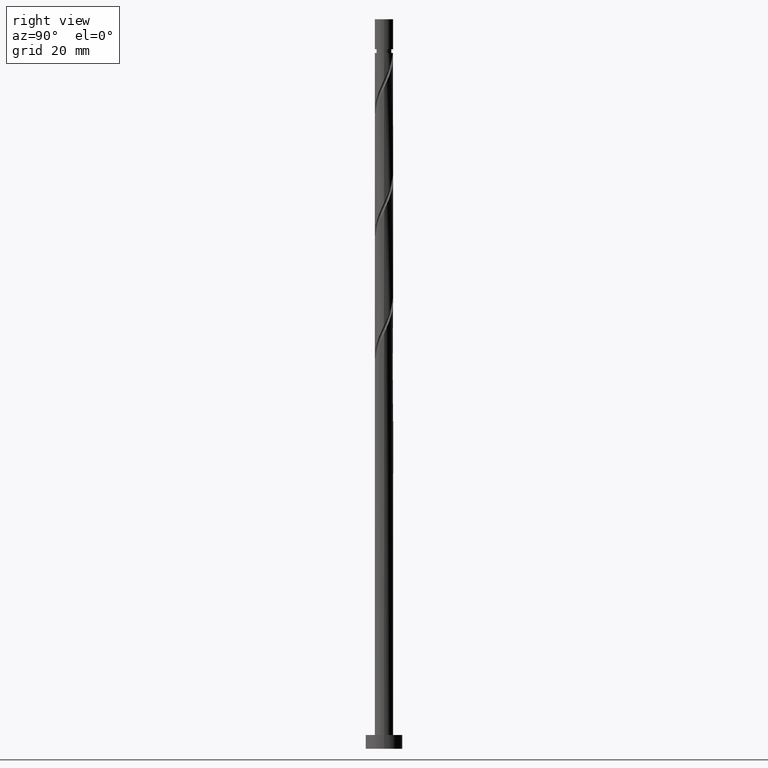
[diagram: clean part render]
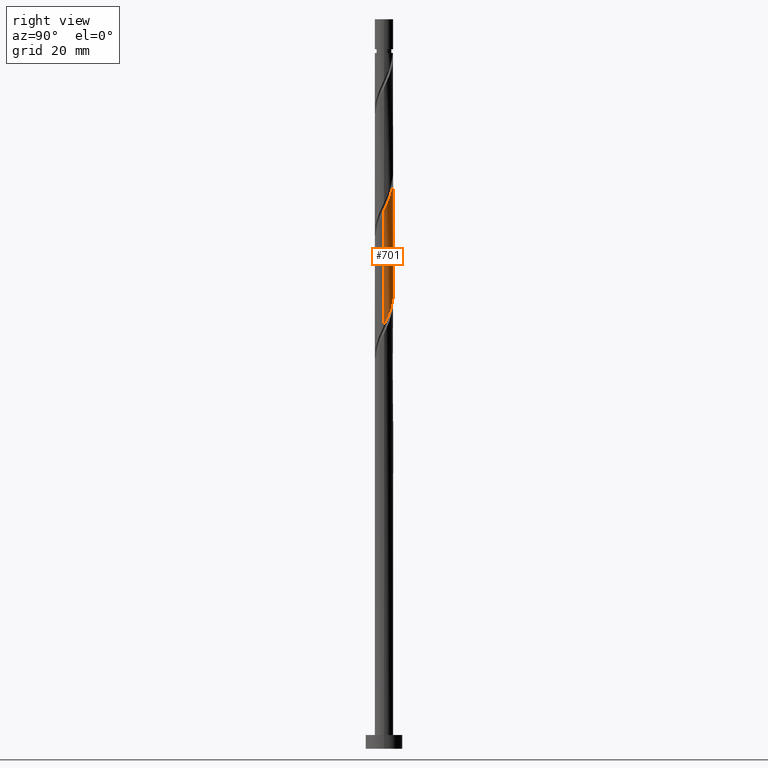
[diagram: same view with one face highlighted and labeled with its STEP entity id]
A machine part, right view. The second image highlights one B-rep face of the part: STEP entity #701.
In plain terms, the highlighted cylindrical surface (edge-blend (fillet) strip) has radius 2 mm, axis along (-0, -0, -1).
Its self-contained STEP definition (entity closure, byte-faithful):
#2 = EDGE_CURVE ( 'NONE', #94, #1554, #1351, .T. ) ;
#20 = CARTESIAN_POINT ( 'NONE',  ( 0.9928482695149688508, 1.759812803970230544, 121.3059297336819782 ) ) ;
#28 = CARTESIAN_POINT ( 'NONE',  ( -1.600603406160407305, 1.233189980288575738, 127.3665357942879979 ) ) ;
#80 = VERTEX_POINT ( 'NONE', #784 ) ;
#94 = VERTEX_POINT ( 'NONE', #1307 ) ;
#98 = CARTESIAN_POINT ( 'NONE',  ( 1.394470680848405753, 1.433684595806965723, 95.24532367307590164 ) ) ;
#140 = CARTESIAN_POINT ( 'NONE',  ( -0.3979949748426479528, 1.960000000000002629, 124.3362327639849951 ) ) ;
#157 = CARTESIAN_POINT ( 'NONE',  ( 2.000000000000003553, 0.05755105304764382423, 116.9422096227356604 ) ) ;
#174 = CARTESIAN_POINT ( 'NONE',  ( -0.6798004310727966404, 1.902776961498554797, 124.9422933700455900 ) ) ;
#215 = CARTESIAN_POINT ( 'NONE',  ( -1.617545623245911557, 1.176242388590886367, 102.5180509458031821 ) ) ;
#224 = CARTESIAN_POINT ( 'NONE',  ( 0.3979949748426485634, 1.959999999999999964, 97.66956609731833794 ) ) ;
#228 = DIRECTION ( 'NONE',  ( -1.000000000000000000, 0.000000000000000000, 0.000000000000000000 ) ) ;
#257 = CARTESIAN_POINT ( 'NONE',  ( 2.000000000000003553, 1.046977449244738821E-15, 116.8201116180174495 ) ) ;
#272 = CARTESIAN_POINT ( 'NONE',  ( 0.1703224295138034972, 1.992734370156877821, 123.1241115518637628 ) ) ;
#289 = CARTESIAN_POINT ( 'NONE',  ( 1.996690616564942955, 0.1150068768444763023, 117.0635054912576862 ) ) ;
#306 = LINE ( 'NONE', #814, #1235 ) ;
#361 = CARTESIAN_POINT ( 'NONE',  ( 2.000000000000000888, 0.2290578547702413481, 92.33831386292386867 ) ) ;
#370 = DIRECTION ( 'NONE',  ( -0.000000000000000000, -0.000000000000000000, -1.000000000000000000 ) ) ;
#380 = CARTESIAN_POINT ( 'NONE',  ( -1.220637884402354434, 1.584311571365223825, 101.3059297336819498 ) ) ;
#386 = CARTESIAN_POINT ( 'NONE',  ( -1.996690616564939846, 0.1150068768444769407, 104.9422933700456184 ) ) ;
#405 = CARTESIAN_POINT ( 'NONE',  ( 2.000000000000003553, 1.046977449244738821E-15, 116.8201116180174495 ) ) ;
#477 = CARTESIAN_POINT ( 'NONE',  ( -0.7248413235775362784, 1.864029252891264088, 100.0938085215607742 ) ) ;
#487 = CARTESIAN_POINT ( 'NONE',  ( 1.600603406160404196, 1.233189980288573295, 94.63926306701530677 ) ) ;
#497 = CARTESIAN_POINT ( 'NONE',  ( 1.883197487972272377, 0.7322950311120128841, 93.42714185489408862 ) ) ;
#552 = VERTEX_POINT ( 'NONE', #257 ) ;
#650 = CARTESIAN_POINT ( 'NONE',  ( -1.883197487972274375, 0.7322950311120159927, 128.5786570064092587 ) ) ;
#655 = CARTESIAN_POINT ( 'NONE',  ( -0.9340691933046025852, 1.768478086411957584, 125.5483539761061706 ) ) ;
#666 = CARTESIAN_POINT ( 'NONE',  ( -0.1161895186124998758, 2.017223038501451349, 123.7301721579243576 ) ) ;
#684 = CARTESIAN_POINT ( 'NONE',  ( 1.786663747202085650, 0.9436744384215545178, 118.8816873094395703 ) ) ;
#701 = ADVANCED_FACE ( 'NONE', ( #861 ), #721, .T. ) ;
#721 = CYLINDRICAL_SURFACE ( 'NONE', #771, 2.000000000000000000 ) ;
#726 = LINE ( 'NONE', #734, #1629 ) ;
#734 = CARTESIAN_POINT ( 'NONE',  ( -2.000000000000000000, 0.000000000000000000, 158.3300000000000125 ) ) ;
#771 = AXIS2_PLACEMENT_3D ( 'NONE', #869, #1387, #228 ) ;
#784 = CARTESIAN_POINT ( 'NONE',  ( -2.000000000000003553, -1.151675194169212802E-15, 130.1534449513507923 ) ) ;
#785 = CARTESIAN_POINT ( 'NONE',  ( -1.394470680848407751, 1.433684595806967943, 126.7604751882274172 ) ) ;
#814 = CARTESIAN_POINT ( 'NONE',  ( 2.000000000000000000, 2.449293598294705921E-16, 158.3300000000000125 ) ) ;
#861 = FACE_OUTER_BOUND ( 'NONE', #1282, .T. ) ;
#865 = CARTESIAN_POINT ( 'NONE',  ( -2.000000000000000000, 1.734991201605581417E-15, 105.1856872432858836 ) ) ;
#869 = CARTESIAN_POINT ( 'NONE',  ( 0.000000000000000000, 0.000000000000000000, 158.3300000000000125 ) ) ;
#890 = CARTESIAN_POINT ( 'NONE',  ( -0.1703224295138027200, 1.992734370156874713, 98.88168730943955609 ) ) ;
#898 = CARTESIAN_POINT ( 'NONE',  ( -1.883409435608316418, 0.6728810428757543427, 103.7301721579244003 ) ) ;
#928 = CARTESIAN_POINT ( 'NONE',  ( 1.448427499289745013, 1.408810338760221104, 120.0938085215607600 ) ) ;
#936 = CARTESIAN_POINT ( 'NONE',  ( 1.220637884402356654, 1.584311571365226046, 120.6998691276213265 ) ) ;
#988 = CARTESIAN_POINT ( 'NONE',  ( -0.4568343776401056489, 1.968245701812300963, 99.48774791550015095 ) ) ;
#1003 = CARTESIAN_POINT ( 'NONE',  ( 1.741900447066337509, 0.9827425057002938669, 94.03320246095468349 ) ) ;
#1011 = CARTESIAN_POINT ( 'NONE',  ( 1.999999999999999556, -2.191174233062221259E-15, 91.85235390995255500 ) ) ;
#1024 = EDGE_CURVE ( 'NONE', #80, #94, #726, .T. ) ;
#1049 = DIRECTION ( 'NONE',  ( -0.000000000000000000, -0.000000000000000000, -1.000000000000000000 ) ) ;
#1067 = CARTESIAN_POINT ( 'NONE',  ( 0.7248413235775373886, 1.864029252891266530, 121.9119903397425730 ) ) ;
#1074 = CARTESIAN_POINT ( 'NONE',  ( 1.980155124014554291, 0.4020876473299550002, 117.6695660973183379 ) ) ;
#1121 = CARTESIAN_POINT ( 'NONE',  ( -1.980155124014550738, 0.4020876473299550002, 104.3362327639850093 ) ) ;
#1133 = EDGE_CURVE ( 'NONE', #552, #80, #1174, .T. ) ;
#1141 = CARTESIAN_POINT ( 'NONE',  ( 1.999999999999999556, -2.191174233062221259E-15, 91.85235390995256921 ) ) ;
#1142 = CARTESIAN_POINT ( 'NONE',  ( -1.786663747202081876, 0.9436744384215537407, 103.1241115518637628 ) ) ;
#1152 = CARTESIAN_POINT ( 'NONE',  ( -1.448427499289741682, 1.408810338760219549, 101.9119903397425730 ) ) ;
#1174 =( BOUNDED_CURVE ( )  B_SPLINE_CURVE ( 2, ( #405, #157, #289, #1074, #1578, #684, #1203, #928, #936, #20, #1067, #1555, #272, #666, #140, #174, #655, #1194, #785, #28, #1456, #650, #1563, #1310, #1571 ),
 .UNSPECIFIED., .F., .T. ) 
 B_SPLINE_CURVE_WITH_KNOTS ( ( 3, 2, 2, 2, 2, 2, 2, 2, 2, 2, 2, 2, 3 ),
 ( 0.4295252162417512731, 0.4318181818181817677, 0.4431818181818182323, 0.4545454545454545858, 0.4659090909090909394, 0.4772727272727272929, 0.4886363636363636465, 0.5000000000000000000, 0.5113636363636363535, 0.5227272727272727071, 0.5340909090909091717, 0.5454545454545454142, 0.5545252162417516617 ),
 .UNSPECIFIED. ) 
 CURVE ( )  GEOMETRIC_REPRESENTATION_ITEM ( )  RATIONAL_B_SPLINE_CURVE ( ( 0.9061101570135692285, 0.9072237824201513368, 0.9090909090909289336, 0.8998376744372310609, 0.9090909090909289336, 0.8998376744372310609, 0.9090909090909289336, 0.8998376744372310609, 0.9090909090909289336, 0.8998376744372310609, 0.9090909090909289336, 0.8998376744372310609, 0.9090909090909289336, 0.8998376744372310609, 0.9090909090909289336, 0.8998376744372310609, 0.9090909090909289336, 0.8998376744372310609, 0.9090909090909289336, 0.8998376744372310609, 0.9090909090909289336, 0.8998376744372310609, 0.9090909090909289336, 0.9017048011080084358, 0.9061101570135694505 ) ) 
 REPRESENTATION_ITEM ( '' )  );
#1194 = CARTESIAN_POINT ( 'NONE',  ( -1.188337955536409307, 1.634179211325361258, 126.1544145821668081 ) ) ;
#1203 = CARTESIAN_POINT ( 'NONE',  ( 1.617545623245914443, 1.176242388590887478, 119.4877479155001083 ) ) ;
#1235 = VECTOR ( 'NONE', #1049, 1000.000000000000000 ) ;
#1254 = CARTESIAN_POINT ( 'NONE',  ( 0.9340691933046018081, 1.768478086411955141, 96.45744488519713400 ) ) ;
#1266 = ORIENTED_EDGE ( 'NONE', *, *, #2, .F. ) ;
#1270 = EDGE_CURVE ( 'NONE', #552, #1554, #306, .T. ) ;
#1282 = EDGE_LOOP ( 'NONE', ( #1390, #1577, #1266, #1503 ) ) ;
#1307 = CARTESIAN_POINT ( 'NONE',  ( -2.000000000000000000, 1.734991201605581417E-15, 105.1856872432858836 ) ) ;
#1310 = CARTESIAN_POINT ( 'NONE',  ( -2.000000000000005329, 0.2290578547702396828, 129.6674849983794218 ) ) ;
#1351 =( BOUNDED_CURVE ( )  B_SPLINE_CURVE ( 2, ( #865, #1531, #386, #1121, #898, #1142, #215, #1152, #380, #1635, #477, #988, #890, #1381, #224, #1656, #1254, #1647, #98, #487, #1003, #497, #1516, #361, #1011 ),
 .UNSPECIFIED., .F., .T. ) 
 B_SPLINE_CURVE_WITH_KNOTS ( ( 3, 2, 2, 2, 2, 2, 2, 2, 2, 2, 2, 2, 3 ),
 ( 0.6795252162417514397, 0.6818181818181817677, 0.6931818181818182323, 0.7045454545454545858, 0.7159090909090909394, 0.7272727272727272929, 0.7386363636363636465, 0.7500000000000000000, 0.7613636363636363535, 0.7727272727272727071, 0.7840909090909090606, 0.7954545454545454142, 0.8045252162417514397 ),
 .UNSPECIFIED. ) 
 CURVE ( )  GEOMETRIC_REPRESENTATION_ITEM ( )  RATIONAL_B_SPLINE_CURVE ( ( 0.9061101570135619010, 0.9072237824201440093, 0.9090909090909213841, 0.8998376744372236224, 0.9090909090909213841, 0.8998376744372236224, 0.9090909090909213841, 0.8998376744372236224, 0.9090909090909213841, 0.8998376744372236224, 0.9090909090909213841, 0.8998376744372236224, 0.9090909090909213841, 0.8998376744372236224, 0.9090909090909213841, 0.8998376744372236224, 0.9090909090909213841, 0.8998376744372236224, 0.9090909090909213841, 0.8998376744372236224, 0.9090909090909213841, 0.8998376744372236224, 0.9090909090909213841, 0.9017048011080009973, 0.9061101570135619010 ) ) 
 REPRESENTATION_ITEM ( '' )  );
#1381 = CARTESIAN_POINT ( 'NONE',  ( 0.1161895186125003337, 2.017223038501447796, 98.27562670337893280 ) ) ;
#1387 = DIRECTION ( 'NONE',  ( -0.000000000000000000, -0.000000000000000000, -1.000000000000000000 ) ) ;
#1390 = ORIENTED_EDGE ( 'NONE', *, *, #1133, .F. ) ;
#1456 = CARTESIAN_POINT ( 'NONE',  ( -1.741900447066339952, 0.9827425057002954212, 127.9725964003486069 ) ) ;
#1503 = ORIENTED_EDGE ( 'NONE', *, *, #1024, .F. ) ;
#1516 = CARTESIAN_POINT ( 'NONE',  ( 1.948211798543799889, 0.4521844623765072235, 92.82108124883349376 ) ) ;
#1531 = CARTESIAN_POINT ( 'NONE',  ( -2.000000000000000000, 0.05755105304764863289, 105.0635892385676726 ) ) ;
#1554 = VERTEX_POINT ( 'NONE', #1141 ) ;
#1555 = CARTESIAN_POINT ( 'NONE',  ( 0.4568343776401069811, 1.968245701812304072, 122.5180509458031679 ) ) ;
#1563 = CARTESIAN_POINT ( 'NONE',  ( -1.948211798543802775, 0.4521844623765091109, 129.1847176124697967 ) ) ;
#1571 = CARTESIAN_POINT ( 'NONE',  ( -2.000000000000003553, -1.151675194169212802E-15, 130.1534449513507923 ) ) ;
#1577 = ORIENTED_EDGE ( 'NONE', *, *, #1270, .T. ) ;
#1578 = CARTESIAN_POINT ( 'NONE',  ( 1.883409435608319304, 0.6728810428757545647, 118.2756267033788902 ) ) ;
#1629 = VECTOR ( 'NONE', #370, 1000.000000000000000 ) ;
#1635 = CARTESIAN_POINT ( 'NONE',  ( -0.9928482695149669635, 1.759812803970227657, 100.6998691276213691 ) ) ;
#1647 = CARTESIAN_POINT ( 'NONE',  ( 1.188337955536406865, 1.634179211325358372, 95.85138427913652492 ) ) ;
#1656 = CARTESIAN_POINT ( 'NONE',  ( 0.6798004310727960853, 1.902776961498551467, 97.06350549125772886 ) ) ;